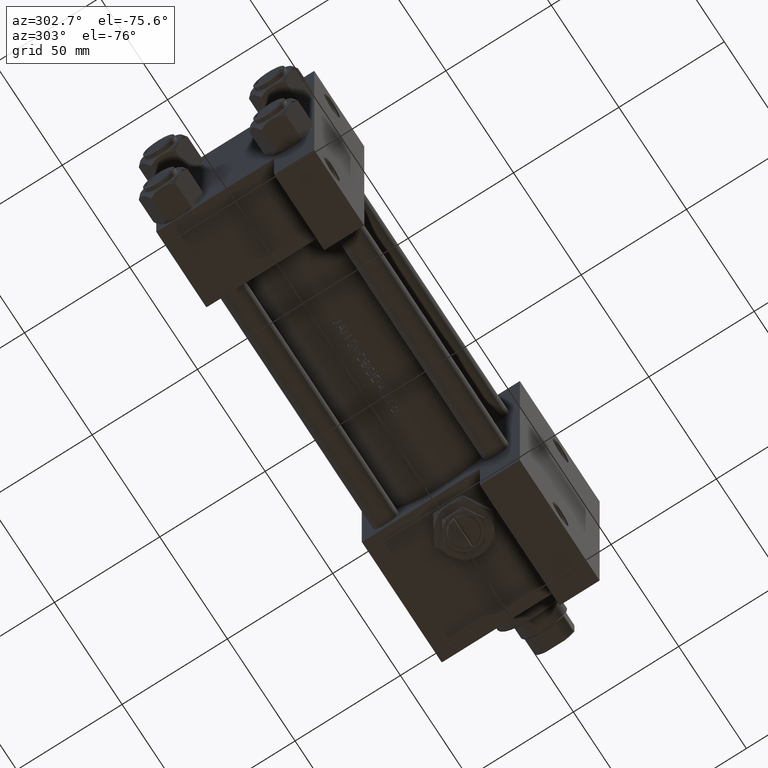
[diagram: clean part render]
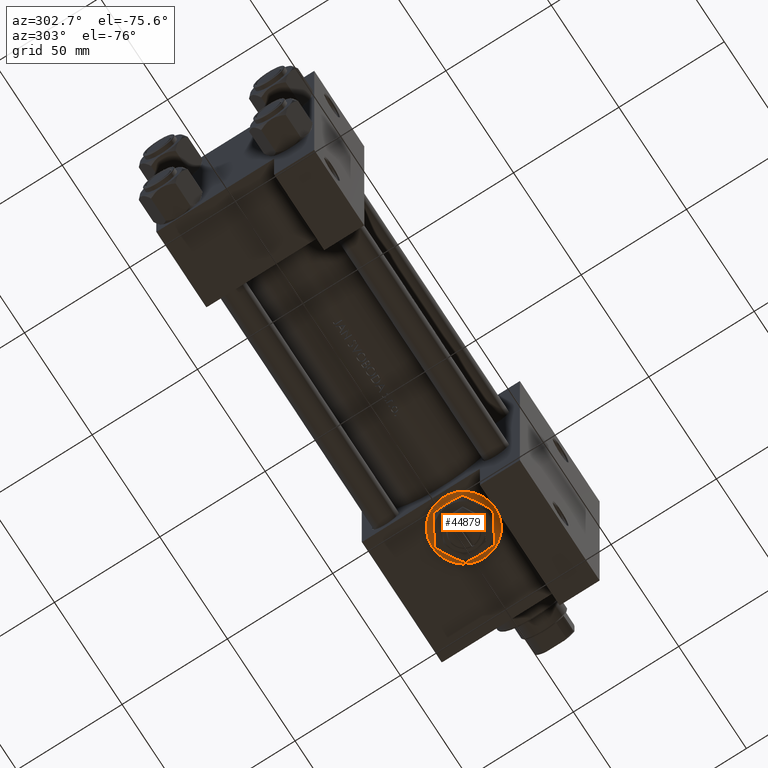
[diagram: same view with one face highlighted and labeled with its STEP entity id]
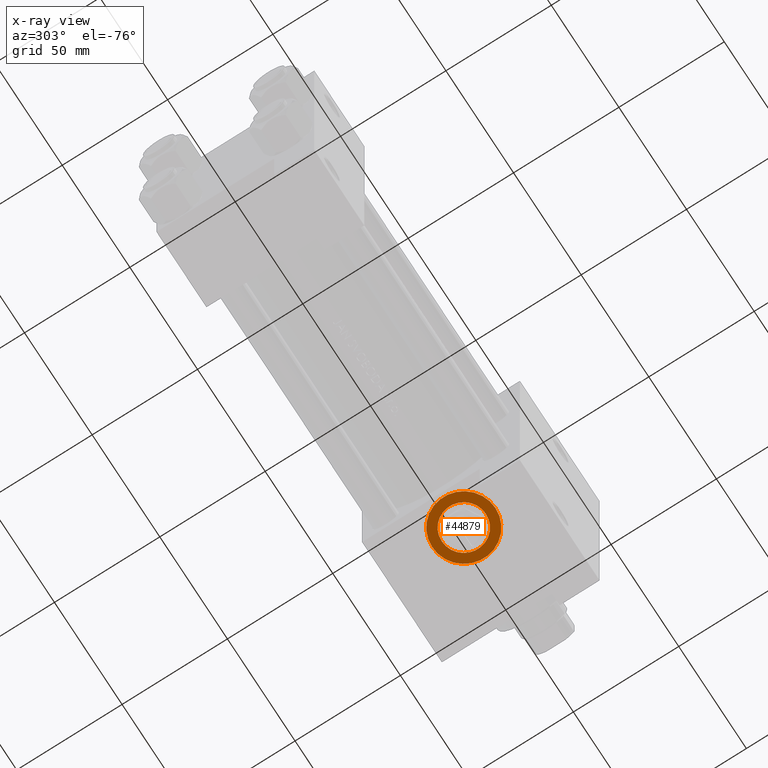
[diagram: x-ray of the same camera — body ghosted, the highlighted face saturated]
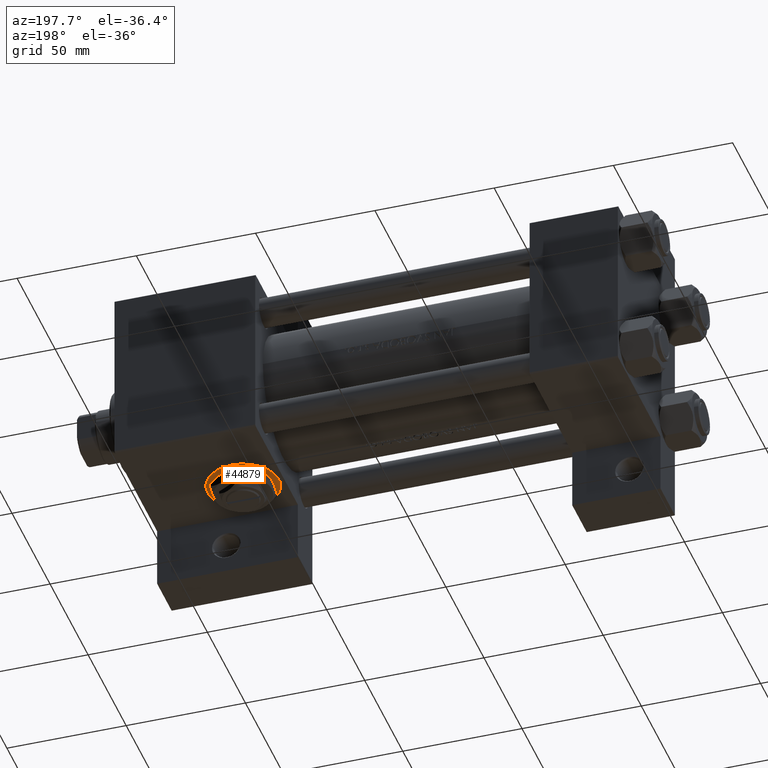
[diagram: same view with one face highlighted and labeled with its STEP entity id]
A machine part, auxiliary view. The second image highlights one B-rep face of the part: STEP entity #44879.
The next image is the same camera in x-ray: the body ghosted, the highlighted face saturated — about 0% of this face is hidden behind the body in this view.
A second angle (auxiliary view) of the same face is appended — the face is thin or edge-on in the first view.
In plain terms, the highlighted planar face has unit normal (0, 0, -1).
Its self-contained STEP definition (entity closure, byte-faithful):
#613 = CARTESIAN_POINT ( 'NONE',  ( 168.9999999999999716, 37.29999999999999716, 15.00000000000002487 ) ) ;
#1912 = EDGE_CURVE ( 'NONE', #20457, #9666, #19457, .T. ) ;
#1974 = EDGE_CURVE ( 'NONE', #9666, #20457, #39345, .T. ) ;
#2719 = CARTESIAN_POINT ( 'NONE',  ( 168.9999999999999716, 37.29999999999999716, -15.00000000000002487 ) ) ;
#3203 = CARTESIAN_POINT ( 'NONE',  ( 168.9999999999999716, 37.29999999999999005, -10.47999999999998622 ) ) ;
#4009 = ORIENTED_EDGE ( 'NONE', *, *, #1974, .T. ) ;
#5577 = CARTESIAN_POINT ( 'NONE',  ( 168.9999999999999716, 37.29999999999999005, 10.47999999999998622 ) ) ;
#6462 = EDGE_LOOP ( 'NONE', ( #38260, #40320 ) ) ;
#6735 = AXIS2_PLACEMENT_3D ( 'NONE', #28629, #28387, #35865 ) ;
#8198 = DIRECTION ( 'NONE',  ( 0.000000000000000000, 1.000000000000000000, 0.000000000000000000 ) ) ;
#8369 = CARTESIAN_POINT ( 'NONE',  ( 168.9999999999999716, 37.29999999999999716, 0.000000000000000000 ) ) ;
#8855 = PLANE ( 'NONE',  #13816 ) ;
#9666 = VERTEX_POINT ( 'NONE', #2719 ) ;
#11385 = EDGE_CURVE ( 'NONE', #42087, #19106, #37908, .T. ) ;
#13816 = AXIS2_PLACEMENT_3D ( 'NONE', #8369, #31279, #19593 ) ;
#15858 = FACE_OUTER_BOUND ( 'NONE', #26483, .T. ) ;
#16414 = DIRECTION ( 'NONE',  ( 0.000000000000000000, 0.000000000000000000, 1.000000000000000000 ) ) ;
#19106 = VERTEX_POINT ( 'NONE', #5577 ) ;
#19457 = CIRCLE ( 'NONE', #21848, 15.00000000000002487 ) ;
#19593 = DIRECTION ( 'NONE',  ( 0.000000000000000000, -0.000000000000000000, 1.000000000000000000 ) ) ;
#20405 = DIRECTION ( 'NONE',  ( 0.000000000000000000, 1.000000000000000000, 0.000000000000000000 ) ) ;
#20457 = VERTEX_POINT ( 'NONE', #613 ) ;
#20722 = DIRECTION ( 'NONE',  ( 0.000000000000000000, 1.000000000000000000, 0.000000000000000000 ) ) ;
#21848 = AXIS2_PLACEMENT_3D ( 'NONE', #45785, #8198, #16414 ) ;
#24265 = CIRCLE ( 'NONE', #6735, 10.47999999999998622 ) ;
#26483 = EDGE_LOOP ( 'NONE', ( #34433, #4009 ) ) ;
#28102 = DIRECTION ( 'NONE',  ( 0.000000000000000000, 0.000000000000000000, 1.000000000000000000 ) ) ;
#28387 = DIRECTION ( 'NONE',  ( 0.000000000000000000, 1.000000000000000000, 0.000000000000000000 ) ) ;
#28629 = CARTESIAN_POINT ( 'NONE',  ( 168.9999999999999716, 37.29999999999999005, 0.000000000000000000 ) ) ;
#31279 = DIRECTION ( 'NONE',  ( 0.000000000000000000, 1.000000000000000000, 0.000000000000000000 ) ) ;
#32631 = CARTESIAN_POINT ( 'NONE',  ( 168.9999999999999716, 37.29999999999999005, 0.000000000000000000 ) ) ;
#34433 = ORIENTED_EDGE ( 'NONE', *, *, #1912, .T. ) ;
#35013 = FACE_BOUND ( 'NONE', #6462, .T. ) ;
#35865 = DIRECTION ( 'NONE',  ( 0.000000000000000000, 0.000000000000000000, 1.000000000000000000 ) ) ;
#37908 = CIRCLE ( 'NONE', #44246, 10.47999999999998622 ) ;
#38260 = ORIENTED_EDGE ( 'NONE', *, *, #43713, .F. ) ;
#39345 = CIRCLE ( 'NONE', #47257, 15.00000000000002487 ) ;
#40320 = ORIENTED_EDGE ( 'NONE', *, *, #11385, .F. ) ;
#42059 = CARTESIAN_POINT ( 'NONE',  ( 168.9999999999999716, 37.29999999999999716, 0.000000000000000000 ) ) ;
#42087 = VERTEX_POINT ( 'NONE', #3203 ) ;
#43713 = EDGE_CURVE ( 'NONE', #19106, #42087, #24265, .T. ) ;
#44246 = AXIS2_PLACEMENT_3D ( 'NONE', #32631, #20722, #47807 ) ;
#44879 = ADVANCED_FACE ( 'NONE', ( #35013, #15858 ), #8855, .T. ) ;
#45785 = CARTESIAN_POINT ( 'NONE',  ( 168.9999999999999716, 37.29999999999999716, 0.000000000000000000 ) ) ;
#47257 = AXIS2_PLACEMENT_3D ( 'NONE', #42059, #20405, #28102 ) ;
#47807 = DIRECTION ( 'NONE',  ( 0.000000000000000000, 0.000000000000000000, 1.000000000000000000 ) ) ;